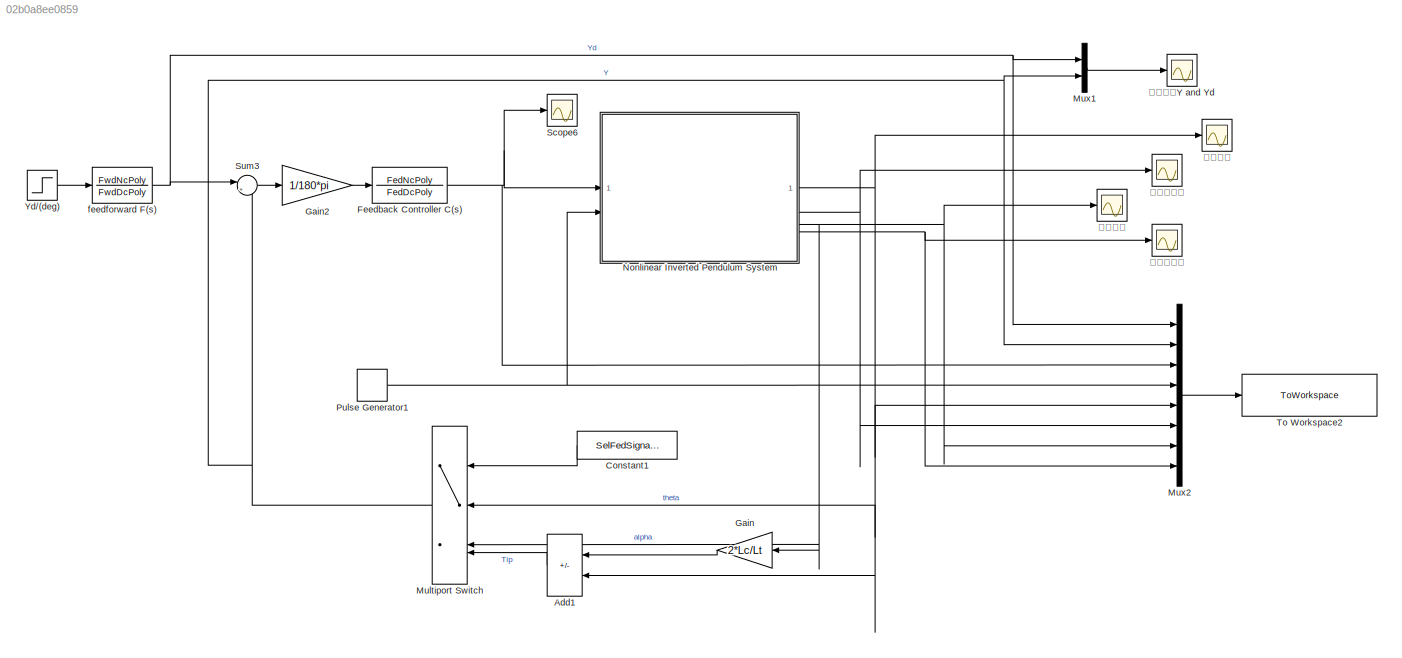
MODEL slx_02b0a8ee0859
KIND model
CONFIG AbsTol = 1e-6
CONFIG EnableMultiTasking = off
CONFIG FixedStep = auto
CONFIG MaxStep = auto
CONFIG MinStep = auto
CONFIG RelTol = 1e-6
CONFIG SampleTimeConstraint = Unconstrained
CONFIG SolverName = ode23s
CONFIG StartTime = 0.0
CONFIG StopTime = 10
BLOCK [Sum] Add1
  IconShape = rectangular
  Inputs = +-
BLOCK [Constant] Constant1
  Value = SelFedSignalFlag
BLOCK [TransferFcn] Feedback Controller C(s)
  Denominator = FedDcPoly
  Numerator = FedNcPoly
BLOCK [Gain] Gain
  Gain = 2*Lc/Lt
BLOCK [Gain] Gain2
  Gain = 1/180*pi
BLOCK [MultiPortSwitch] Multiport Switch
  InputSameDT = off
  SaturateOnIntegerOverflow = off
BLOCK [Mux] Mux1
  DisplayOption = bar
  Inputs = 2
BLOCK [Mux] Mux2
  DisplayOption = bar
  Inputs = 8
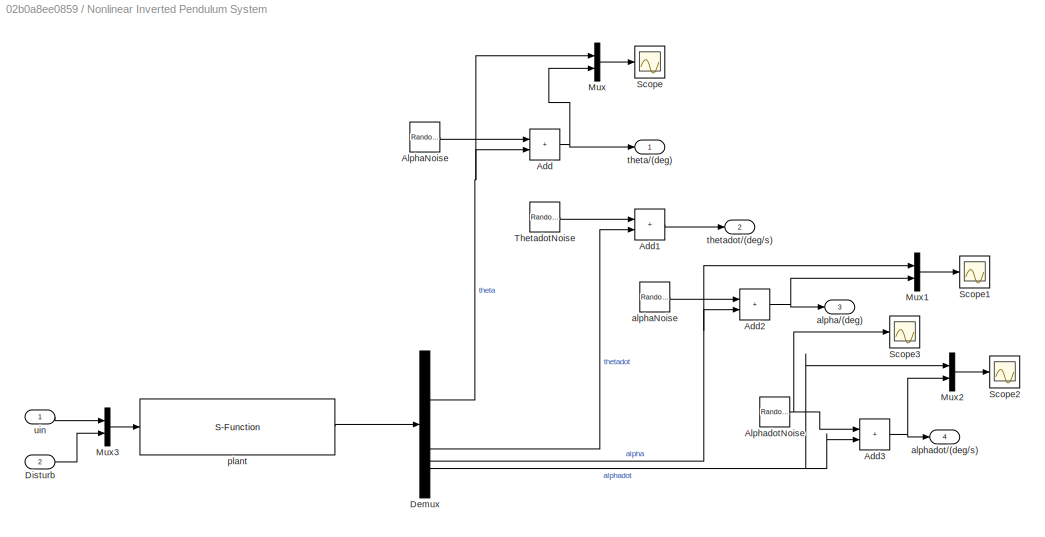
BLOCK [SubSystem] Nonlinear Inverted Pendulum System
BLOCK [Sum] Nonlinear Inverted Pendulum System/Add
  IconShape = rectangular
BLOCK [Sum] Nonlinear Inverted Pendulum System/Add1
  IconShape = rectangular
BLOCK [Sum] Nonlinear Inverted Pendulum System/Add2
  IconShape = rectangular
BLOCK [Sum] Nonlinear Inverted Pendulum System/Add3
  IconShape = rectangular
BLOCK [RandomNumber] Nonlinear Inverted Pendulum System/AlphaNoise
  Mean = NoisePara(1,1)
  SampleTime = NoisePara(1,4)
  Seed = NoisePara(1,3)
  Variance = NoisePara(1,2)
BLOCK [RandomNumber] Nonlinear Inverted Pendulum System/AlphadotNoise
  Mean = NoisePara(4,1)
  SampleTime = NoisePara(4,4)
  Seed = NoisePara(4,3)
  Variance = NoisePara(4,2)
BLOCK [Demux] Nonlinear Inverted Pendulum System/Demux
BLOCK [Inport] Nonlinear Inverted Pendulum System/Disturb
  Port = 2
BLOCK [Mux] Nonlinear Inverted Pendulum System/Mux
  DisplayOption = bar
  Inputs = 2
BLOCK [Mux] Nonlinear Inverted Pendulum System/Mux1
  DisplayOption = bar
  Inputs = 2
BLOCK [Mux] Nonlinear Inverted Pendulum System/Mux2
  DisplayOption = bar
  Inputs = 2
BLOCK [Mux] Nonlinear Inverted Pendulum System/Mux3
  DisplayOption = bar
  Inputs = 2
BLOCK [Scope] Nonlinear Inverted Pendulum System/Scope
  ActiveDisplayYMaximum = 186.30044367057948
  ActiveDisplayYMinimum = -60.02025936499134
  DataLoggingVariableName = ScopeData1
  Floating = off
  GraphicalSettings = {"Style":{"BackgroundColor":[0.12941176470588237,0.12941176470588237,0.12941176470588237],"AxesColor":[0.07058823529411765,0.07058823529411765,0.07058823529411765],"LabelsColor":[0.8509803921568627,0.8509803921568627,0.8509803921568627],"PreserveColors":false,"Visible":[true,true],"LineStyle":["-","-"],"LineWidth":[1.5,1.5],"BarWidth":[0.9,0.9],"LineColor":["auto","auto"],"LineFaceAlpha":[1,1],"Li...<+2100ch>
  MultipleDisplayCache = [{"MaxYLimMag":186.30044367057948,"MaxYLimReal":186.30044367057948,"MinYLimMag":0,"MinYLimReal":-60.02025936499134,"PlotAsMagnitudePhase":false,"ShowGrid":true,"ShowLegend":false,"Title":"%<SignalLabel>","YLabel":""}]
  NumInputPorts = 1
  ScopeFrameLocation = window
  WasSavedAsWebScope = on
  WindowPosition = [573.000000,270.000000,560.000000,420.000000,]
BLOCK [Scope] Nonlinear Inverted Pendulum System/Scope1
  ActiveDisplayYMaximum = 7.1870979166560911
  ActiveDisplayYMinimum = -4.6838812499048146
  DataLoggingVariableName = ScopeData2
  Floating = off
  GraphicalSettings = {"Style":{"BackgroundColor":[0.12941176470588237,0.12941176470588237,0.12941176470588237],"AxesColor":[0.07058823529411765,0.07058823529411765,0.07058823529411765],"LabelsColor":[0.8509803921568627,0.8509803921568627,0.8509803921568627],"PreserveColors":false,"Visible":[true,true],"LineStyle":["-","-"],"LineWidth":[1.5,1.5],"BarWidth":[0.9,0.9],"LineColor":["auto","auto"],"LineFaceAlpha":[1,1],"Li...<+2098ch>
  MultipleDisplayCache = [{"MaxYLimMag":7.1870979166560911,"MaxYLimReal":7.1870979166560911,"MinYLimMag":0,"MinYLimReal":-4.6838812499048146,"PlotAsMagnitudePhase":false,"ShowGrid":true,"ShowLegend":false,"Title":"%<SignalLabel>","YLabel":""}]
  NumInputPorts = 1
  ScopeFrameLocation = window
  WasSavedAsWebScope = on
  WindowPosition = [573.000000,270.000000,560.000000,420.000000,]
BLOCK [Scope] Nonlinear Inverted Pendulum System/Scope2
  ActiveDisplayYMaximum = 60.367572347842923
  ActiveDisplayYMinimum = -83.098384168672382
  DataLoggingVariableName = ScopeData3
  Floating = off
  GraphicalSettings = {"Style":{"BackgroundColor":[0.12941176470588237,0.12941176470588237,0.12941176470588237],"AxesColor":[0.07058823529411765,0.07058823529411765,0.07058823529411765],"LabelsColor":[0.8509803921568627,0.8509803921568627,0.8509803921568627],"PreserveColors":false,"Visible":[true,true],"LineStyle":["-","-"],"LineWidth":[1.5,1.5],"BarWidth":[0.9,0.9],"LineColor":["auto","auto"],"LineFaceAlpha":[1,1],"Li...<+2104ch>
  MultipleDisplayCache = [{"MaxYLimMag":83.098384168672382,"MaxYLimReal":60.367572347842923,"MinYLimMag":0,"MinYLimReal":-83.098384168672382,"PlotAsMagnitudePhase":false,"ShowGrid":true,"ShowLegend":false,"Title":"%<SignalLabel>","YLabel":""}]
  NumInputPorts = 1
  ScopeFrameLocation = window
  WasSavedAsWebScope = on
  WindowPosition = [573.000000,270.000000,560.000000,420.000000,]
BLOCK [Scope] Nonlinear Inverted Pendulum System/Scope3
  ActiveDisplayYMaximum = 1
  ActiveDisplayYMinimum = -1
  DataLoggingVariableName = ScopeData4
  Floating = off
  GraphicalSettings = {"Style":{"BackgroundColor":[0.12941176470588237,0.12941176470588237,0.12941176470588237],"AxesColor":[0.07058823529411765,0.07058823529411765,0.07058823529411765],"LabelsColor":[0.8509803921568627,0.8509803921568627,0.8509803921568627],"PreserveColors":false,"Visible":[true],"LineStyle":["-"],"LineWidth":[1.5],"BarWidth":[0.9],"LineColor":["auto"],"LineFaceAlpha":[1],"LineEdgeAlpha":[1],"Marker":...<+2109ch>
  MultipleDisplayCache = [{"MaxYLimMag":1,"MaxYLimReal":1,"MinYLimMag":0,"MinYLimReal":-1,"PlotAsMagnitudePhase":false,"ShowGrid":true,"ShowLegend":false,"Title":"%<SignalLabel>","YLabel":""}]
  NumInputPorts = 1
  ScopeFrameLocation = window
  WasSavedAsWebScope = on
  WindowPosition = [573.000000,270.000000,560.000000,420.000000,]
BLOCK [RandomNumber] Nonlinear Inverted Pendulum System/ThetadotNoise
  Mean = NoisePara(2,1)
  SampleTime = NoisePara(2,4)
  Seed = NoisePara(2,3)
  Variance = NoisePara(2,2)
BLOCK [Outport] Nonlinear Inverted Pendulum System/alpha//(deg)
  Port = 3
BLOCK [RandomNumber] Nonlinear Inverted Pendulum System/alphaNoise
  Mean = NoisePara(3,1)
  SampleTime = NoisePara(3,4)
  Seed = NoisePara(3,3)
  Variance = NoisePara(3,2)
BLOCK [Outport] Nonlinear Inverted Pendulum System/alphadot//(deg//s)
  Port = 4
BLOCK [S-Function] Nonlinear Inverted Pendulum System/plant
  EnableBusSupport = off
  FunctionName = sfun_Inverted_Pendulumn_Dynamics
  Parameters = InitX,TFPara,ModelSelFlag
  SFcnIsStateOwnerBlock = off
  SFunctionDeploymentMode = off
BLOCK [Outport] Nonlinear Inverted Pendulum System/theta//(deg)
BLOCK [Outport] Nonlinear Inverted Pendulum System/thetadot//(deg//s)
  Port = 2
BLOCK [Inport] Nonlinear Inverted Pendulum System/uin
BLOCK [DiscretePulseGenerator] Pulse Generator1
  Amplitude = DisAmp
  Period = DisPeriod
  PhaseDelay = DisPhase
  PulseType = Time based
  PulseWidth = DisRatio
BLOCK [Scope] Scope6
  ActiveDisplayYMaximum = 1
  ActiveDisplayYMinimum = -1
  DataLoggingVariableName = ScopeData6
  Floating = off
  GraphicalSettings = {"Style":{"BackgroundColor":[1,1,1],"AxesColor":[1,1,1],"LabelsColor":[0,0,0],"PreserveColors":false,"Visible":[true],"LineStyle":["-"],"LineWidth":[2],"BarWidth":[0.9],"LineColor":[[1,0,0]],"LineFaceAlpha":[1],"LineEdgeAlpha":[1],"Marker":["none"],"FontSize":8.5,"LineTrueColor":[[1,0,0]],"ChannelNames":[""],"DefaultLegendLabel":["Feedback Controller C(s)"],"PlotType":"Auto","NumLinesForDisplays":...<+2200ch>
  MultipleDisplayCache = [{"MaxYLimMag":1,"MaxYLimReal":1,"MinYLimMag":0,"MinYLimReal":-1,"PlotAsMagnitudePhase":false,"ShowGrid":true,"ShowLegend":false,"Title":"%<SignalLabel>","YLabel":""}]
  NumInputPorts = 1
  ScopeFrameLocation = window
  WasSavedAsWebScope = on
  WindowPosition = [573.000000,270.000000,560.000000,420.000000,]
BLOCK [Sum] Sum3
  Inputs = |+-
BLOCK [ToWorkspace] To Workspace2
  MaxDataPoints = inf
  SampleTime = CtrlTs
  SaveFormat = Structure With Time
  VariableName = ControlData
BLOCK [Step] Yd//(deg)
  After = Yd
  SampleTime = 0
  Time = YdStepTime
BLOCK [TransferFcn] feedforward F(s)
  Denominator = FwdDcPoly
  Numerator = FwdNcPoly
BLOCK [Scope] 响应比较Y and Yd
  ActiveDisplayYMaximum = 7.1870979166560911
  ActiveDisplayYMinimum = -4.6838812499048146
  AxesScaling = Auto
  DataLoggingVariableName = ScopeData1
  Floating = off
  GraphicalSettings = {"Style":{"BackgroundColor":[1,1,1],"AxesColor":[1,1,1],"LabelsColor":[0,0,0],"PreserveColors":false,"Visible":[true,true],"LineStyle":["-","-"],"LineWidth":[2,2],"BarWidth":[0.9,0.9],"LineColor":[[1,0,0],[0.07450980392156863,0.6235294117647059,1]],"LineFaceAlpha":[1,1],"LineEdgeAlpha":[1,1],"Marker":["none","none"],"FontSize":8.5,"LineTrueColor":[[1,0,0],[0.07450980392156863,0.6235294117647059,1]...<+2209ch>
  MultipleDisplayCache = [{"MaxYLimMag":7.1870979166560911,"MaxYLimReal":7.1870979166560911,"MinYLimMag":0,"MinYLimReal":-4.6838812499048146,"PlotAsMagnitudePhase":false,"ShowGrid":true,"ShowLegend":true,"Title":"%<SignalLabel>","YLabel":""}]
  NumInputPorts = 1
  ScopeFrameLocation = window
  ShowLegend = on
  WasSavedAsWebScope = on
  WindowPosition = [683.000000,322.000000,560.000000,420.000000,]
BLOCK [Scope] 悬臂角度
  ActiveDisplayYMaximum = 1
  ActiveDisplayYMinimum = -1
  DataLoggingVariableName = ScopeData8
  Floating = off
  GraphicalSettings = {"Style":{"BackgroundColor":[1,1,1],"AxesColor":[1,1,1],"LabelsColor":[0,0,0],"PreserveColors":false,"Visible":[true],"LineStyle":["-"],"LineWidth":[2],"BarWidth":[0.9],"LineColor":[[1,0,0]],"LineFaceAlpha":[1],"LineEdgeAlpha":[1],"Marker":["none"],"FontSize":8.5,"LineTrueColor":[[1,0,0]],"ChannelNames":["","α"],"DefaultLegendLabel":["theta"],"PlotType":"Auto","NumLinesForDisplays":[1],"OffsetView...<+2476ch>
  MultipleDisplayCache = [{"MaxYLimMag":1,"MaxYLimReal":1,"MinYLimMag":0,"MinYLimReal":-1,"PlotAsMagnitudePhase":false,"ShowGrid":true,"ShowLegend":true,"Title":"%<SignalLabel>","YLabel":""}]
  NumInputPorts = 1
  ScopeFrameLocation = window
  ShowLegend = on
  WasSavedAsWebScope = on
  WindowPosition = [573.000000,270.000000,560.000000,420.000000,]
BLOCK [Scope] 悬臂角速度
  ActiveDisplayYMaximum = 1
  ActiveDisplayYMinimum = -1
  DataLoggingVariableName = ScopeData1
  Floating = off
  GraphicalSettings = {"Style":{"BackgroundColor":[1,1,1],"AxesColor":[1,1,1],"LabelsColor":[0,0,0],"PreserveColors":false,"Visible":[true],"LineStyle":["-"],"LineWidth":[2],"BarWidth":[0.9],"LineColor":[[1,0,0]],"LineFaceAlpha":[1],"LineEdgeAlpha":[1],"Marker":["none"],"FontSize":8.5,"LineTrueColor":[[1,0,0]],"ChannelNames":[""],"DefaultLegendLabel":["Nonlinear Inverted Pendulum System/2"],"PlotType":"Auto","NumLinesF...<+2055ch>
  MultipleDisplayCache = [{"MaxYLimMag":1,"MaxYLimReal":1,"MinYLimMag":0,"MinYLimReal":-1,"PlotAsMagnitudePhase":false,"ShowGrid":true,"ShowLegend":false,"Title":"%<SignalLabel>","YLabel":""}]
  NumInputPorts = 1
  ScopeFrameLocation = window
  WasSavedAsWebScope = on
  WindowPosition = [573.000000,270.000000,560.000000,420.000000,]
BLOCK [Scope] 摆杆角度
  ActiveDisplayYMaximum = 1
  ActiveDisplayYMinimum = -1
  DataLoggingVariableName = ScopeData2
  Floating = off
  GraphicalSettings = {"Style":{"BackgroundColor":[1,1,1],"AxesColor":[1,1,1],"LabelsColor":[0,0,0],"PreserveColors":false,"Visible":[true],"LineStyle":["-"],"LineWidth":[2],"BarWidth":[0.9],"LineColor":[[1,0,0]],"LineFaceAlpha":[1],"LineEdgeAlpha":[1],"Marker":["none"],"FontSize":8.5,"LineTrueColor":[[1,0,0]],"ChannelNames":[""],"DefaultLegendLabel":["alpha"],"PlotType":"Auto","NumLinesForDisplays":[1],"OffsetView":tr...<+1993ch>
  MultipleDisplayCache = [{"MaxYLimMag":1,"MaxYLimReal":1,"MinYLimMag":0,"MinYLimReal":-1,"PlotAsMagnitudePhase":false,"ShowGrid":true,"ShowLegend":false,"Title":"%<SignalLabel>","YLabel":""}]
  NumInputPorts = 1
  ScopeFrameLocation = window
  WasSavedAsWebScope = on
  WindowPosition = [573.000000,270.000000,560.000000,420.000000,]
BLOCK [Scope] 摆杆角速度
  ActiveDisplayYMaximum = 1
  ActiveDisplayYMinimum = -1
  DataLoggingVariableName = ScopeData3
  Floating = off
  GraphicalSettings = {"Style":{"BackgroundColor":[1,1,1],"AxesColor":[1,1,1],"LabelsColor":[0,0,0],"PreserveColors":false,"Visible":[true],"LineStyle":["-"],"LineWidth":[2],"BarWidth":[0.9],"LineColor":[[1,0,0]],"LineFaceAlpha":[1],"LineEdgeAlpha":[1],"Marker":["none"],"FontSize":8.5,"LineTrueColor":[[1,0,0]],"ChannelNames":[""],"DefaultLegendLabel":["Nonlinear Inverted Pendulum System/4"],"PlotType":"Auto","NumLinesF...<+2055ch>
  MultipleDisplayCache = [{"MaxYLimMag":1,"MaxYLimReal":1,"MinYLimMag":0,"MinYLimReal":-1,"PlotAsMagnitudePhase":false,"ShowGrid":true,"ShowLegend":false,"Title":"%<SignalLabel>","YLabel":""}]
  NumInputPorts = 1
  ScopeFrameLocation = window
  WasSavedAsWebScope = on
  WindowPosition = [573.000000,270.000000,560.000000,420.000000,]
LINE Add1:1 -> Multiport Switch:4
LINE Constant1:1 -> Multiport Switch:1
NET Feedback Controller C(s):1 -> Mux2:3, Nonlinear Inverted Pendulum System:1, Scope6:1
LINE Gain2:1 -> Feedback Controller C(s):1
LINE Gain:1 -> Add1:1
NET Multiport Switch:1 -> Mux1:2, Mux2:2, Sum3:2
LINE Mux1:1 -> 响应比较Y and Yd:1
LINE Mux2:1 -> To Workspace2:1
LINE Nonlinear Inverted Pendulum System/Add1:1 -> Nonlinear Inverted Pendulum System/thetadot//(deg//s):1
NET Nonlinear Inverted Pendulum System/Add2:1 -> Nonlinear Inverted Pendulum System/Mux1:2, Nonlinear Inverted Pendulum System/alpha//(deg):1
NET Nonlinear Inverted Pendulum System/Add3:1 -> Nonlinear Inverted Pendulum System/Mux2:2, Nonlinear Inverted Pendulum System/alphadot//(deg//s):1
NET Nonlinear Inverted Pendulum System/Add:1 -> Nonlinear Inverted Pendulum System/Mux:2, Nonlinear Inverted Pendulum System/theta//(deg):1
LINE Nonlinear Inverted Pendulum System/AlphaNoise:1 -> Nonlinear Inverted Pendulum System/Add:1
NET Nonlinear Inverted Pendulum System/AlphadotNoise:1 -> Nonlinear Inverted Pendulum System/Add3:1, Nonlinear Inverted Pendulum System/Scope3:1
NET Nonlinear Inverted Pendulum System/Demux:1 -> Nonlinear Inverted Pendulum System/Add:2, Nonlinear Inverted Pendulum System/Mux:1
LINE Nonlinear Inverted Pendulum System/Demux:2 -> Nonlinear Inverted Pendulum System/Add1:2
NET Nonlinear Inverted Pendulum System/Demux:3 -> Nonlinear Inverted Pendulum System/Add2:2, Nonlinear Inverted Pendulum System/Mux1:1
NET Nonlinear Inverted Pendulum System/Demux:4 -> Nonlinear Inverted Pendulum System/Add3:2, Nonlinear Inverted Pendulum System/Mux2:1
LINE Nonlinear Inverted Pendulum System/Disturb:1 -> Nonlinear Inverted Pendulum System/Mux3:2
LINE Nonlinear Inverted Pendulum System/Mux1:1 -> Nonlinear Inverted Pendulum System/Scope1:1
LINE Nonlinear Inverted Pendulum System/Mux2:1 -> Nonlinear Inverted Pendulum System/Scope2:1
LINE Nonlinear Inverted Pendulum System/Mux3:1 -> Nonlinear Inverted Pendulum System/plant:1
LINE Nonlinear Inverted Pendulum System/Mux:1 -> Nonlinear Inverted Pendulum System/Scope:1
LINE Nonlinear Inverted Pendulum System/ThetadotNoise:1 -> Nonlinear Inverted Pendulum System/Add1:1
LINE Nonlinear Inverted Pendulum System/alphaNoise:1 -> Nonlinear Inverted Pendulum System/Add2:1
LINE Nonlinear Inverted Pendulum System/plant:1 -> Nonlinear Inverted Pendulum System/Demux:1
LINE Nonlinear Inverted Pendulum System/uin:1 -> Nonlinear Inverted Pendulum System/Mux3:1
NET Nonlinear Inverted Pendulum System:1 -> Add1:2, Multiport Switch:2, Mux2:5, 悬臂角度:1
NET Nonlinear Inverted Pendulum System:2 -> Mux2:6, 悬臂角速度:1
NET Nonlinear Inverted Pendulum System:3 -> Gain:1, Multiport Switch:3, Mux2:7, 摆杆角度:1
NET Nonlinear Inverted Pendulum System:4 -> Mux2:8, 摆杆角速度:1
NET Pulse Generator1:1 -> Mux2:4, Nonlinear Inverted Pendulum System:2
LINE Sum3:1 -> Gain2:1
LINE Yd//(deg):1 -> feedforward F(s):1
NET feedforward F(s):1 -> Mux1:1, Mux2:1, Sum3:1
note: NET lines group one-source signal fan-out (src -> all destinations, sorted); 1:1 wires keep LINE
